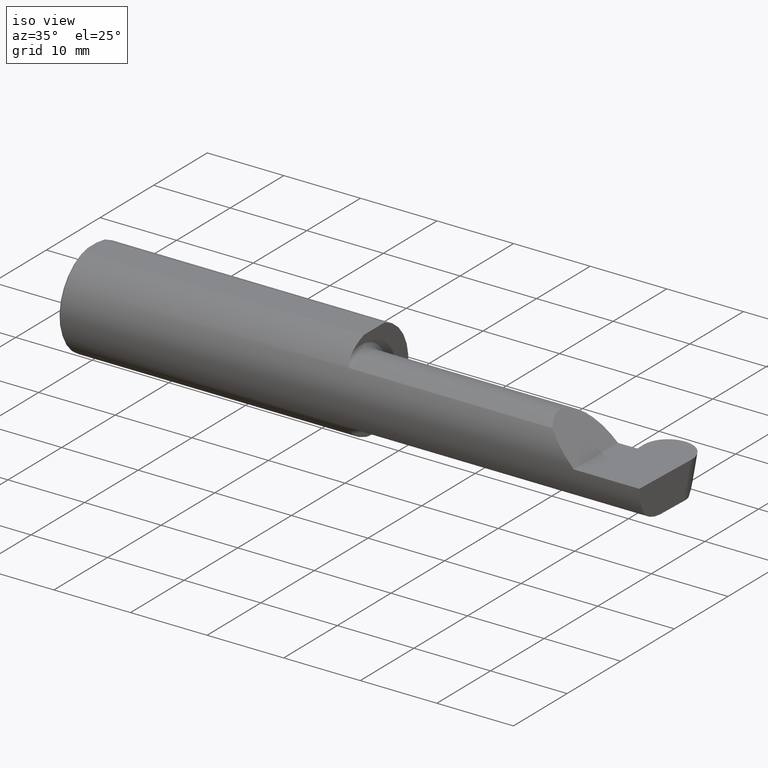
[diagram: clean part render]
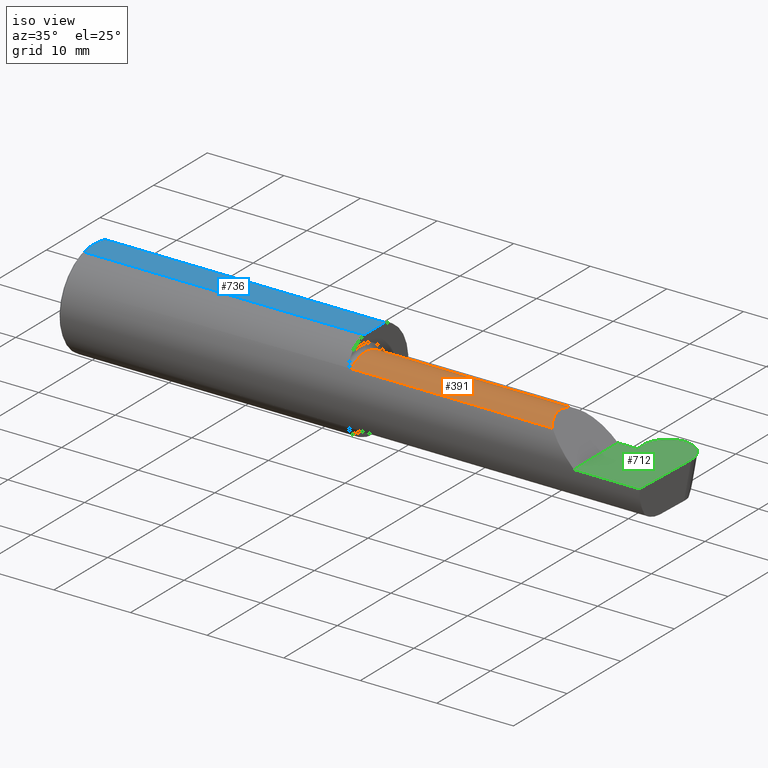
[diagram: same view with three faces highlighted in distinct colors, each labeled with its STEP entity id]
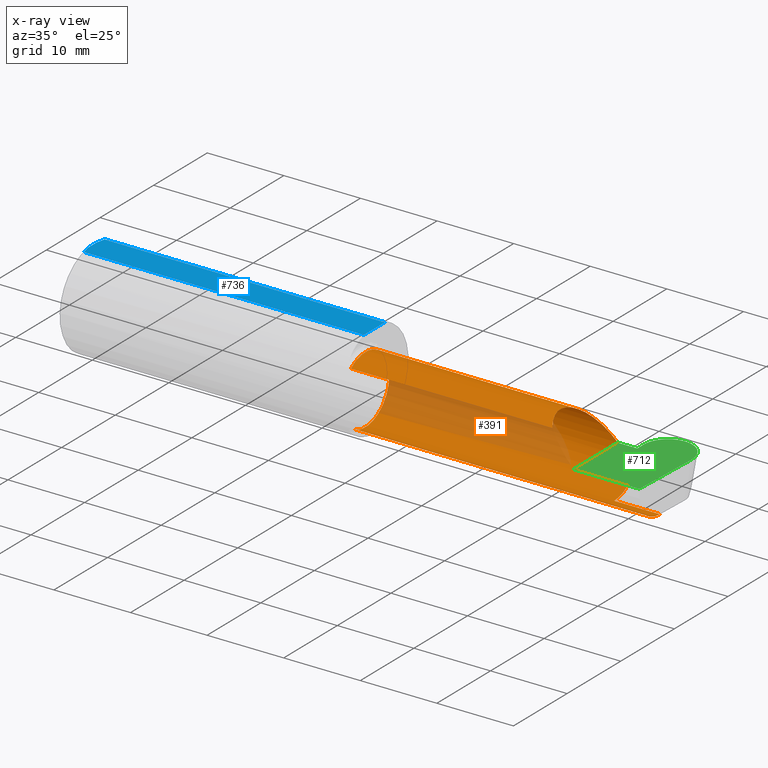
[diagram: x-ray of the same camera — body ghosted, the three highlighted faces saturated]
A machine part, iso view with three faces highlighted in distinct colors.
The next image is the same camera in x-ray (body ghosted, the three faces saturated) — at least one of them is partly hidden behind the body in this view.
Their STEP definitions:

[orange] entity #391 — the highlighted cylindrical surface (partial cylindrical patch) has radius 4.445 mm, axis along (-1, -0, -0).
#3 = ORIENTED_EDGE ( 'NONE', *, *, #547, .F. ) ;
#9 = VERTEX_POINT ( 'NONE', #16 ) ;
#16 = CARTESIAN_POINT ( 'NONE',  ( 2.989253867864499092, -0.1008499999999999119, -0.1750000000000000722 ) ) ;
#18 = VERTEX_POINT ( 'NONE', #254 ) ;
#29 = VERTEX_POINT ( 'NONE', #546 ) ;
#46 = EDGE_CURVE ( 'NONE', #343, #18, #316, .T. ) ;
#48 = ORIENTED_EDGE ( 'NONE', *, *, #381, .T. ) ;
#49 = DIRECTION ( 'NONE',  ( -1.000000000000000000, -7.887675390231430346E-17, -0.000000000000000000 ) ) ;
#70 = AXIS2_PLACEMENT_3D ( 'NONE', #627, #49, #614 ) ;
#72 = EDGE_CURVE ( 'NONE', #413, #689, #392, .T. ) ;
#74 = CARTESIAN_POINT ( 'NONE',  ( 2.650000000000000355, 0.07415000000000000757, 1.898202538678394994E-16 ) ) ;
#84 = VECTOR ( 'NONE', #168, 39.37007874015748143 ) ;
#92 = CARTESIAN_POINT ( 'NONE',  ( 2.650000000000000355, 0.07415000000000000757, 1.898202538678394994E-16 ) ) ;
#104 = ORIENTED_EDGE ( 'NONE', *, *, #46, .T. ) ;
#106 = EDGE_CURVE ( 'NONE', #396, #333, #711, .T. ) ;
#115 = CARTESIAN_POINT ( 'NONE',  ( 2.739326706053758276, 0.07414999999999984104, 0.000000000000000000 ) ) ;
#127 = CARTESIAN_POINT ( 'NONE',  ( 2.750478392166241903, 0.07404339472834139957, -0.006107411922948607387 ) ) ;
#137 = EDGE_CURVE ( 'NONE', #689, #29, #165, .T. ) ;
#149 = CARTESIAN_POINT ( 'NONE',  ( 2.111894750000000265, -0.2080850024789289432, -0.1382955322609668858 ) ) ;
#158 = ORIENTED_EDGE ( 'NONE', *, *, #175, .F. ) ;
#165 = LINE ( 'NONE', #335, #84 ) ;
#168 = DIRECTION ( 'NONE',  ( 1.000000000000000000, 7.887675390231430346E-17, 0.000000000000000000 ) ) ;
#175 = EDGE_CURVE ( 'NONE', #343, #9, #472, .T. ) ;
#180 = ORIENTED_EDGE ( 'NONE', *, *, #72, .T. ) ;
#200 = CARTESIAN_POINT ( 'NONE',  ( 2.753585400763539415, -0.1008500000000000091, -0.1750000000000000444 ) ) ;
#231 = VECTOR ( 'NONE', #241, 39.37007874015748143 ) ;
#241 = DIRECTION ( 'NONE',  ( -1.000000000000000000, -0.000000000000000000, -0.000000000000000000 ) ) ;
#242 = VERTEX_POINT ( 'NONE', #448 ) ;
#251 = EDGE_LOOP ( 'NONE', ( #104, #3, #48, #180, #291, #726, #616, #697, #707, #158 ) ) ;
#254 = CARTESIAN_POINT ( 'NONE',  ( 1.474999999999999867, -0.2080850024789288044, -0.1382955322609669968 ) ) ;
#269 = CIRCLE ( 'NONE', #70, 0.1750000000000000444 ) ;
#291 = ORIENTED_EDGE ( 'NONE', *, *, #137, .T. ) ;
#292 = CARTESIAN_POINT ( 'NONE',  ( 2.739291170963205069, 0.07411446490944702259, -0.002035803974316283561 ) ) ;
#303 = CARTESIAN_POINT ( 'NONE',  ( 2.111894750000000265, -0.2080850024789289432, 0.1382955322609668858 ) ) ;
#312 = CARTESIAN_POINT ( 'NONE',  ( 2.739255635872652750, 0.07407892981889421802, -0.004071607948632567989 ) ) ;
#316 = LINE ( 'NONE', #149, #618 ) ;
#333 = VERTEX_POINT ( 'NONE', #585 ) ;
#335 = CARTESIAN_POINT ( 'NONE',  ( 1.450000000000000178, 0.07414999999999991043, 1.898202538678394994E-16 ) ) ;
#343 = VERTEX_POINT ( 'NONE', #466 ) ;
#346 = DIRECTION ( 'NONE',  ( -1.000000000000000000, -7.887675390231430346E-17, -0.000000000000000000 ) ) ;
#352 = B_SPLINE_CURVE_WITH_KNOTS ( 'NONE', 3,
 ( #416, #312, #292, #115 ),
 .UNSPECIFIED., .F., .F.,
 ( 4, 4 ),
 ( 0.000000000000000000, 1.000000000000000000 ),
 .UNSPECIFIED. ) ;
#356 = LINE ( 'NONE', #524, #231 ) ;
#365 = CARTESIAN_POINT ( 'NONE',  ( 1.450000000000000178, 0.07404339472834153835, -0.006107411922941730943 ) ) ;
#381 = EDGE_CURVE ( 'NONE', #645, #413, #744, .T. ) ;
#384 = CARTESIAN_POINT ( 'NONE',  ( 2.986150208451177512, -0.2080850024789288599, -0.1382955322609668858 ) ) ;
#387 = EDGE_CURVE ( 'NONE', #9, #242, #356, .T. ) ;
#391 = ADVANCED_FACE ( 'NONE', ( #409 ), #629, .T. ) ;
#392 =( BOUNDED_CURVE ( )  B_SPLINE_CURVE ( 3, ( #435, #484, #653, #92 ),
 .UNSPECIFIED., .F., .T. ) 
 B_SPLINE_CURVE_WITH_KNOTS ( ( 4, 4 ),
 ( 5.623622464215682015, 7.853981633974482790 ),
 .UNSPECIFIED. ) 
 CURVE ( )  GEOMETRIC_REPRESENTATION_ITEM ( )  RATIONAL_B_SPLINE_CURVE ( ( 1.000000000000000000, 0.6266774836123999437, 0.6266774836123999437, 1.000000000000000000 ) ) 
 REPRESENTATION_ITEM ( '' )  );
#396 = VERTEX_POINT ( 'NONE', #127 ) ;
#402 = DIRECTION ( 'NONE',  ( 0.000000000000000000, -1.000000000000000000, 0.000000000000000000 ) ) ;
#407 = AXIS2_PLACEMENT_3D ( 'NONE', #638, #346, #402 ) ;
#409 = FACE_OUTER_BOUND ( 'NONE', #251, .T. ) ;
#413 = VERTEX_POINT ( 'NONE', #531 ) ;
#416 = CARTESIAN_POINT ( 'NONE',  ( 2.739220100782099543, 0.07404339472834139957, -0.006107411922948844177 ) ) ;
#424 =( BOUNDED_CURVE ( )  B_SPLINE_CURVE ( 3, ( #200, #537, #481, #607 ),
 .UNSPECIFIED., .F., .F. ) 
 B_SPLINE_CURVE_WITH_KNOTS ( ( 4, 4 ),
 ( 3.159045946109731773, 4.694935687864679963 ),
 .UNSPECIFIED. ) 
 CURVE ( )  GEOMETRIC_REPRESENTATION_ITEM ( )  RATIONAL_B_SPLINE_CURVE ( ( 1.000000000000000000, 0.8128932002257817091, 0.8128932002257817091, 1.000000000000000000 ) ) 
 REPRESENTATION_ITEM ( '' )  );
#435 = CARTESIAN_POINT ( 'NONE',  ( 2.511704467739031887, -0.2080850024789288599, 0.1382955322609669413 ) ) ;
#448 = CARTESIAN_POINT ( 'NONE',  ( 2.753585400763539415, -0.1008500000000000091, -0.1750000000000000444 ) ) ;
#459 = CARTESIAN_POINT ( 'NONE',  ( 1.474999999999999867, -0.2080850024789289432, 0.1382955322609669413 ) ) ;
#466 = CARTESIAN_POINT ( 'NONE',  ( 2.986150208451177512, -0.2080850024789288599, -0.1382955322609668858 ) ) ;
#469 = EDGE_CURVE ( 'NONE', #242, #396, #424, .T. ) ;
#472 =( BOUNDED_CURVE ( )  B_SPLINE_CURVE ( 3, ( #384, #725, #500, #511 ),
 .UNSPECIFIED., .F., .F. ) 
 B_SPLINE_CURVE_WITH_KNOTS ( ( 4, 4 ),
 ( 0.4474640105399709800, 1.107026853503876085 ),
 .UNSPECIFIED. ) 
 CURVE ( )  GEOMETRIC_REPRESENTATION_ITEM ( )  RATIONAL_B_SPLINE_CURVE ( ( 1.000000000000000000, 0.9640754331822831702, 0.9640754331822831702, 1.000000000000000000 ) ) 
 REPRESENTATION_ITEM ( '' )  );
#481 = CARTESIAN_POINT ( 'NONE',  ( 2.752279901668356121, 0.07056399972053571668, -0.1057442486376065499 ) ) ;
#484 = CARTESIAN_POINT ( 'NONE',  ( 2.409263745716142324, -0.07597241004310675838, 0.2407362542838553388 ) ) ;
#500 = CARTESIAN_POINT ( 'NONE',  ( 2.987885367171879025, -0.1400387324517228804, -0.1750000000000001277 ) ) ;
#511 = CARTESIAN_POINT ( 'NONE',  ( 2.989253867864499092, -0.1008499999999999119, -0.1750000000000000722 ) ) ;
#514 = VECTOR ( 'NONE', #592, 39.37007874015748143 ) ;
#524 = CARTESIAN_POINT ( 'NONE',  ( 3.402190948718818664, -0.1008499999999999119, -0.1750000000000000722 ) ) ;
#525 = EDGE_CURVE ( 'NONE', #333, #29, #352, .T. ) ;
#527 = DIRECTION ( 'NONE',  ( 1.000000000000000000, 7.887675390231430346E-17, 0.000000000000000000 ) ) ;
#531 = CARTESIAN_POINT ( 'NONE',  ( 2.511704467739031887, -0.2080850024789288599, 0.1382955322609669413 ) ) ;
#537 = CARTESIAN_POINT ( 'NONE',  ( 2.753553955298210898, -0.001152430219569846323, -0.1750000000000000999 ) ) ;
#538 = DIRECTION ( 'NONE',  ( -1.000000000000000000, -7.887675390231430346E-17, -0.000000000000000000 ) ) ;
#546 = CARTESIAN_POINT ( 'NONE',  ( 2.739326706053758276, 0.07414999999999984104, 0.000000000000000000 ) ) ;
#547 = EDGE_CURVE ( 'NONE', #645, #18, #269, .T. ) ;
#548 = VECTOR ( 'NONE', #527, 39.37007874015748143 ) ;
#585 = CARTESIAN_POINT ( 'NONE',  ( 2.739220100782099543, 0.07404339472834139957, -0.006107411922948844177 ) ) ;
#592 = DIRECTION ( 'NONE',  ( -1.000000000000000000, -7.887675390231430346E-17, -0.000000000000000000 ) ) ;
#607 = CARTESIAN_POINT ( 'NONE',  ( 2.750478392166241903, 0.07404339472834139957, -0.006107411922948607387 ) ) ;
#614 = DIRECTION ( 'NONE',  ( 0.000000000000000000, -1.000000000000000000, 0.000000000000000000 ) ) ;
#616 = ORIENTED_EDGE ( 'NONE', *, *, #106, .F. ) ;
#618 = VECTOR ( 'NONE', #538, 39.37007874015748143 ) ;
#627 = CARTESIAN_POINT ( 'NONE',  ( 1.474999999999999867, -0.1008500000000001062, 0.000000000000000000 ) ) ;
#629 = CYLINDRICAL_SURFACE ( 'NONE', #407, 0.1750000000000000444 ) ;
#638 = CARTESIAN_POINT ( 'NONE',  ( 1.450000000000000178, -0.1008500000000001062, 0.000000000000000000 ) ) ;
#645 = VERTEX_POINT ( 'NONE', #459 ) ;
#653 = CARTESIAN_POINT ( 'NONE',  ( 2.482823929317965028, 0.07415000000000000757, 0.1671760706820337450 ) ) ;
#689 = VERTEX_POINT ( 'NONE', #74 ) ;
#697 = ORIENTED_EDGE ( 'NONE', *, *, #469, .F. ) ;
#707 = ORIENTED_EDGE ( 'NONE', *, *, #387, .F. ) ;
#711 = LINE ( 'NONE', #365, #514 ) ;
#725 = CARTESIAN_POINT ( 'NONE',  ( 2.986812263240209653, -0.1771157075472506726, -0.1623092683844332140 ) ) ;
#726 = ORIENTED_EDGE ( 'NONE', *, *, #525, .F. ) ;
#744 = LINE ( 'NONE', #303, #548 ) ;

[blue] entity #736 — the highlighted planar face has unit normal (0, 0, 1).
#2 = LINE ( 'NONE', #246, #729 ) ;
#13 = DIRECTION ( 'NONE',  ( -1.000000000000000000, -0.000000000000000000, -0.000000000000000000 ) ) ;
#52 = EDGE_CURVE ( 'NONE', #225, #682, #589, .T. ) ;
#67 = ORIENTED_EDGE ( 'NONE', *, *, #256, .F. ) ;
#73 = EDGE_LOOP ( 'NONE', ( #337, #410, #264, #449, #505, #67 ) ) ;
#93 = EDGE_CURVE ( 'NONE', #682, #601, #259, .T. ) ;
#123 = DIRECTION ( 'NONE',  ( 1.000000000000000000, 0.000000000000000000, 0.000000000000000000 ) ) ;
#156 = CARTESIAN_POINT ( 'NONE',  ( 0.009999999999999927350, -0.07650098038587520299, 0.2378499999999998671 ) ) ;
#189 = FACE_OUTER_BOUND ( 'NONE', #73, .T. ) ;
#191 = EDGE_CURVE ( 'NONE', #239, #204, #453, .T. ) ;
#199 = CARTESIAN_POINT ( 'NONE',  ( 0.000000000000000000, 0.07650098038587520299, 0.2378499999999998671 ) ) ;
#204 = VERTEX_POINT ( 'NONE', #394 ) ;
#205 = EDGE_CURVE ( 'NONE', #204, #601, #361, .T. ) ;
#209 = DIRECTION ( 'NONE',  ( -7.887675390231430346E-17, 1.000000000000000000, 0.000000000000000000 ) ) ;
#221 = CARTESIAN_POINT ( 'NONE',  ( 0.000000000000000000, -0.03090954545120560767, 0.2378499999999998671 ) ) ;
#224 = DIRECTION ( 'NONE',  ( -0.000000000000000000, 1.000000000000000000, -0.000000000000000000 ) ) ;
#225 = VERTEX_POINT ( 'NONE', #620 ) ;
#227 = CARTESIAN_POINT ( 'NONE',  ( 0.000000000000000000, 0.03090954545120574992, 0.2378499999999998671 ) ) ;
#239 = VERTEX_POINT ( 'NONE', #221 ) ;
#246 = CARTESIAN_POINT ( 'NONE',  ( 0.000000000000000000, -0.07650098038587520299, 0.2378499999999998671 ) ) ;
#248 = DIRECTION ( 'NONE',  ( 1.000000000000000000, 0.000000000000000000, -0.000000000000000000 ) ) ;
#256 = EDGE_CURVE ( 'NONE', #458, #239, #280, .T. ) ;
#259 = LINE ( 'NONE', #199, #715 ) ;
#264 = ORIENTED_EDGE ( 'NONE', *, *, #93, .T. ) ;
#280 = B_SPLINE_CURVE_WITH_KNOTS ( 'NONE', 3,
 ( #156, #456, #494, #720 ),
 .UNSPECIFIED., .F., .F.,
 ( 4, 4 ),
 ( 0.01317593029100226111, 0.01435802289191457325 ),
 .UNSPECIFIED. ) ;
#308 = VECTOR ( 'NONE', #209, 39.37007874015748143 ) ;
#325 = EDGE_CURVE ( 'NONE', #458, #225, #2, .T. ) ;
#337 = ORIENTED_EDGE ( 'NONE', *, *, #325, .T. ) ;
#355 = CARTESIAN_POINT ( 'NONE',  ( 1.450000000000000178, 0.07650098038587520299, 0.2378499999999998671 ) ) ;
#361 = B_SPLINE_CURVE_WITH_KNOTS ( 'NONE', 3,
 ( #227, #609, #676, #507 ),
 .UNSPECIFIED., .F., .F.,
 ( 4, 4 ),
 ( 0.01593449416844765903, 0.01712021724825598876 ),
 .UNSPECIFIED. ) ;
#394 = CARTESIAN_POINT ( 'NONE',  ( 0.000000000000000000, 0.03090954545120574992, 0.2378499999999998671 ) ) ;
#410 = ORIENTED_EDGE ( 'NONE', *, *, #52, .T. ) ;
#414 = PLANE ( 'NONE',  #703 ) ;
#432 = CARTESIAN_POINT ( 'NONE',  ( 1.450000000000000178, 0.2498499999999996835, 0.2378499999999998671 ) ) ;
#449 = ORIENTED_EDGE ( 'NONE', *, *, #205, .F. ) ;
#453 = LINE ( 'NONE', #558, #540 ) ;
#456 = CARTESIAN_POINT ( 'NONE',  ( 0.005459900170181729989, -0.06167314502012864741, 0.2378499999999998671 ) ) ;
#458 = VERTEX_POINT ( 'NONE', #498 ) ;
#494 = CARTESIAN_POINT ( 'NONE',  ( 0.001983148254845710189, -0.04629825796642594860, 0.2378499999999998671 ) ) ;
#498 = CARTESIAN_POINT ( 'NONE',  ( 0.009999999999999927350, -0.07650098038587520299, 0.2378499999999998671 ) ) ;
#505 = ORIENTED_EDGE ( 'NONE', *, *, #191, .F. ) ;
#507 = CARTESIAN_POINT ( 'NONE',  ( 0.009999999999999927350, 0.07650098038587520299, 0.2378499999999998671 ) ) ;
#540 = VECTOR ( 'NONE', #224, 39.37007874015748143 ) ;
#558 = CARTESIAN_POINT ( 'NONE',  ( 0.000000000000000000, 0.2498499999999998500, 0.2378499999999998671 ) ) ;
#580 = CARTESIAN_POINT ( 'NONE',  ( 3.501298404146671484, 0.2498499999999998500, 0.2378499999999998671 ) ) ;
#589 = LINE ( 'NONE', #432, #308 ) ;
#601 = VERTEX_POINT ( 'NONE', #675 ) ;
#609 = CARTESIAN_POINT ( 'NONE',  ( 0.002005502345409073024, 0.04647171987093980799, 0.2378499999999998671 ) ) ;
#620 = CARTESIAN_POINT ( 'NONE',  ( 1.450000000000000178, -0.07650098038587530014, 0.2378499999999998671 ) ) ;
#640 = DIRECTION ( 'NONE',  ( 0.000000000000000000, 0.000000000000000000, 1.000000000000000000 ) ) ;
#675 = CARTESIAN_POINT ( 'NONE',  ( 0.009999999999999927350, 0.07650098038587520299, 0.2378499999999998671 ) ) ;
#676 = CARTESIAN_POINT ( 'NONE',  ( 0.005466242398876407227, 0.06169385855649833772, 0.2378499999999998671 ) ) ;
#682 = VERTEX_POINT ( 'NONE', #355 ) ;
#703 = AXIS2_PLACEMENT_3D ( 'NONE', #580, #640, #248 ) ;
#715 = VECTOR ( 'NONE', #13, 39.37007874015748143 ) ;
#720 = CARTESIAN_POINT ( 'NONE',  ( 0.000000000000000000, -0.03090954545120560767, 0.2378499999999998671 ) ) ;
#729 = VECTOR ( 'NONE', #123, 39.37007874015748143 ) ;
#736 = ADVANCED_FACE ( 'NONE', ( #189 ), #414, .T. ) ;

[green] entity #712 — the highlighted planar face has unit normal (-0, 0, -1).
#10 = EDGE_CURVE ( 'NONE', #694, #307, #490, .T. ) ;
#29 = VERTEX_POINT ( 'NONE', #546 ) ;
#31 = LINE ( 'NONE', #550, #309 ) ;
#39 = LINE ( 'NONE', #451, #183 ) ;
#53 = LINE ( 'NONE', #740, #669 ) ;
#61 = CARTESIAN_POINT ( 'NONE',  ( 2.871989500000000195, 0.2471499999999999808, 0.000000000000000000 ) ) ;
#74 = CARTESIAN_POINT ( 'NONE',  ( 2.650000000000000355, 0.07415000000000000757, 1.898202538678394994E-16 ) ) ;
#84 = VECTOR ( 'NONE', #168, 39.37007874015748143 ) ;
#94 = CARTESIAN_POINT ( 'NONE',  ( 2.987107171508847081, -0.2498499999999999888, 0.000000000000000000 ) ) ;
#101 = LINE ( 'NONE', #155, #702 ) ;
#108 = VECTOR ( 'NONE', #661, 39.37007874015748143 ) ;
#109 = DIRECTION ( 'NONE',  ( -1.000000000000000000, -0.000000000000000000, -0.000000000000000000 ) ) ;
#112 = CARTESIAN_POINT ( 'NONE',  ( 2.999793206199442785, 0.1134305025558126762, 0.000000000000000000 ) ) ;
#116 = CARTESIAN_POINT ( 'NONE',  ( 2.748789500000000441, 0.1196039745734777809, 3.076441347372056086E-17 ) ) ;
#117 = VERTEX_POINT ( 'NONE', #596 ) ;
#128 = EDGE_LOOP ( 'NONE', ( #613, #496, #357, #526, #658, #575, #389, #659, #385, #331 ) ) ;
#130 = EDGE_CURVE ( 'NONE', #721, #117, #330, .T. ) ;
#134 = FACE_OUTER_BOUND ( 'NONE', #128, .T. ) ;
#137 = EDGE_CURVE ( 'NONE', #689, #29, #165, .T. ) ;
#144 =( BOUNDED_CURVE ( )  B_SPLINE_CURVE ( 3, ( #386, #568, #560, #281 ),
 .UNSPECIFIED., .F., .F. ) 
 B_SPLINE_CURVE_WITH_KNOTS ( ( 4, 4 ),
 ( -8.881784197001252323E-16, 1.570796326794896780 ),
 .UNSPECIFIED. ) 
 CURVE ( )  GEOMETRIC_REPRESENTATION_ITEM ( )  RATIONAL_B_SPLINE_CURVE ( ( 1.000000000000000000, 0.8047378541243646044, 0.8047378541243646044, 1.000000000000000000 ) ) 
 REPRESENTATION_ITEM ( '' )  );
#155 = CARTESIAN_POINT ( 'NONE',  ( 2.750367999175829414, 0.07414999999999984104, 0.000000000000000000 ) ) ;
#165 = LINE ( 'NONE', #335, #84 ) ;
#168 = DIRECTION ( 'NONE',  ( 1.000000000000000000, 7.887675390231430346E-17, 0.000000000000000000 ) ) ;
#174 = DIRECTION ( 'NONE',  ( -0.000000000000000000, 1.000000000000000000, -0.000000000000000000 ) ) ;
#183 = VECTOR ( 'NONE', #506, 39.37007874015748143 ) ;
#192 = VERTEX_POINT ( 'NONE', #94 ) ;
#208 = EDGE_CURVE ( 'NONE', #605, #694, #31, .T. ) ;
#216 = CARTESIAN_POINT ( 'NONE',  ( -3.937007874019685528E-05, 0.2471499999999999808, 0.000000000000000000 ) ) ;
#237 = CARTESIAN_POINT ( 'NONE',  ( 2.875201260087796307, 0.2471499999999999808, 0.000000000000000000 ) ) ;
#263 = EDGE_CURVE ( 'NONE', #542, #117, #276, .T. ) ;
#274 = VERTEX_POINT ( 'NONE', #688 ) ;
#276 =( BOUNDED_CURVE ( )  B_SPLINE_CURVE ( 3, ( #412, #582, #572, #237 ),
 .UNSPECIFIED., .F., .F. ) 
 B_SPLINE_CURVE_WITH_KNOTS ( ( 4, 4 ),
 ( 1.637964922114649946, 3.237953570749840360 ),
 .UNSPECIFIED. ) 
 CURVE ( )  GEOMETRIC_REPRESENTATION_ITEM ( )  RATIONAL_B_SPLINE_CURVE ( ( 1.000000000000000000, 0.7978071872141911935, 0.7978071872141911935, 1.000000000000000000 ) ) 
 REPRESENTATION_ITEM ( '' )  );
#281 = CARTESIAN_POINT ( 'NONE',  ( 2.748789500000000441, 0.1196039745734777809, 3.076441347372056086E-17 ) ) ;
#283 = DIRECTION ( 'NONE',  ( -0.03489949670249486990, 0.9993908270190959842, -0.000000000000000000 ) ) ;
#307 = VERTEX_POINT ( 'NONE', #116 ) ;
#309 = VECTOR ( 'NONE', #283, 39.37007874015748143 ) ;
#313 = CARTESIAN_POINT ( 'NONE',  ( 2.748789500000000441, -0.2500000000000000555, 3.076441347372055469E-17 ) ) ;
#330 = LINE ( 'NONE', #216, #378 ) ;
#331 = ORIENTED_EDGE ( 'NONE', *, *, #263, .T. ) ;
#335 = CARTESIAN_POINT ( 'NONE',  ( 1.450000000000000178, 0.07414999999999991043, 1.898202538678394994E-16 ) ) ;
#342 = CARTESIAN_POINT ( 'NONE',  ( 2.750367999175829414, 0.07414999999999984104, 0.000000000000000000 ) ) ;
#351 = CARTESIAN_POINT ( 'NONE',  ( 3.000000000000000444, -0.2500000000000000555, 0.000000000000000000 ) ) ;
#357 = ORIENTED_EDGE ( 'NONE', *, *, #10, .F. ) ;
#366 = DIRECTION ( 'NONE',  ( -1.224646799147351975E-16, 0.000000000000000000, -1.000000000000000000 ) ) ;
#372 = AXIS2_PLACEMENT_3D ( 'NONE', #351, #366, #643 ) ;
#377 = DIRECTION ( 'NONE',  ( 1.000000000000000000, -0.000000000000000000, -0.000000000000000000 ) ) ;
#378 = VECTOR ( 'NONE', #444, 39.37007874015748143 ) ;
#385 = ORIENTED_EDGE ( 'NONE', *, *, #528, .F. ) ;
#386 = CARTESIAN_POINT ( 'NONE',  ( 2.871989500000000195, 0.2471499999999999808, 0.000000000000000000 ) ) ;
#389 = ORIENTED_EDGE ( 'NONE', *, *, #631, .F. ) ;
#412 = CARTESIAN_POINT ( 'NONE',  ( 2.999793206199442785, 0.1134305025558126762, 0.000000000000000000 ) ) ;
#444 = DIRECTION ( 'NONE',  ( 1.000000000000000000, -0.000000000000000000, -0.000000000000000000 ) ) ;
#451 = CARTESIAN_POINT ( 'NONE',  ( 2.999923484675441010, 0.1171611899918090643, 0.000000000000000000 ) ) ;
#470 = CARTESIAN_POINT ( 'NONE',  ( 2.748789500000000441, 0.1193523022059226057, 0.000000000000000000 ) ) ;
#490 = LINE ( 'NONE', #313, #108 ) ;
#496 = ORIENTED_EDGE ( 'NONE', *, *, #623, .T. ) ;
#506 = DIRECTION ( 'NONE',  ( -0.03489949670249543195, -0.9993908270190959842, 0.000000000000000000 ) ) ;
#509 = EDGE_CURVE ( 'NONE', #29, #605, #101, .T. ) ;
#510 = LINE ( 'NONE', #687, #562 ) ;
#526 = ORIENTED_EDGE ( 'NONE', *, *, #208, .F. ) ;
#528 = EDGE_CURVE ( 'NONE', #542, #192, #39, .T. ) ;
#542 = VERTEX_POINT ( 'NONE', #112 ) ;
#546 = CARTESIAN_POINT ( 'NONE',  ( 2.739326706053758276, 0.07414999999999984104, 0.000000000000000000 ) ) ;
#550 = CARTESIAN_POINT ( 'NONE',  ( 2.748866015324560319, 0.1171611899918090366, 0.000000000000000000 ) ) ;
#560 = CARTESIAN_POINT ( 'NONE',  ( 2.748789500000000441, 0.1943187064415508869, 3.216169852589703280E-17 ) ) ;
#562 = VECTOR ( 'NONE', #109, 39.37007874015748143 ) ;
#568 = CARTESIAN_POINT ( 'NONE',  ( 2.799820610884365735, 0.2471500000000000641, 2.591218986574986251E-17 ) ) ;
#570 = EDGE_CURVE ( 'NONE', #192, #274, #510, .T. ) ;
#572 = CARTESIAN_POINT ( 'NONE',  ( 2.950455787437228139, 0.2471500000000000918, 7.751331101916276061E-18 ) ) ;
#575 = ORIENTED_EDGE ( 'NONE', *, *, #137, .F. ) ;
#582 = CARTESIAN_POINT ( 'NONE',  ( 3.002511784637379222, 0.1912804032740403892, 1.376310067157437428E-18 ) ) ;
#584 = PLANE ( 'NONE',  #372 ) ;
#596 = CARTESIAN_POINT ( 'NONE',  ( 2.875201260087796307, 0.2471499999999999808, 0.000000000000000000 ) ) ;
#605 = VERTEX_POINT ( 'NONE', #342 ) ;
#613 = ORIENTED_EDGE ( 'NONE', *, *, #130, .F. ) ;
#623 = EDGE_CURVE ( 'NONE', #721, #307, #144, .T. ) ;
#631 = EDGE_CURVE ( 'NONE', #274, #689, #53, .T. ) ;
#643 = DIRECTION ( 'NONE',  ( -1.000000000000000000, 0.000000000000000000, 1.224646799147351975E-16 ) ) ;
#658 = ORIENTED_EDGE ( 'NONE', *, *, #509, .F. ) ;
#659 = ORIENTED_EDGE ( 'NONE', *, *, #570, .F. ) ;
#661 = DIRECTION ( 'NONE',  ( -7.887675390231430346E-17, 1.000000000000000000, 9.659616419360262912E-33 ) ) ;
#669 = VECTOR ( 'NONE', #174, 39.37007874015748143 ) ;
#687 = CARTESIAN_POINT ( 'NONE',  ( 4.499279347985562423E-32, -0.2498499999999999610, 3.673940397442054938E-16 ) ) ;
#688 = CARTESIAN_POINT ( 'NONE',  ( 2.650000000000000355, -0.2498499999999999610, 4.286263797015729199E-17 ) ) ;
#689 = VERTEX_POINT ( 'NONE', #74 ) ;
#694 = VERTEX_POINT ( 'NONE', #470 ) ;
#702 = VECTOR ( 'NONE', #377, 39.37007874015748143 ) ;
#712 = ADVANCED_FACE ( 'NONE', ( #134 ), #584, .F. ) ;
#721 = VERTEX_POINT ( 'NONE', #61 ) ;
#740 = CARTESIAN_POINT ( 'NONE',  ( 2.650000000000000355, -0.2500000000000000555, 4.286263797015729199E-17 ) ) ;